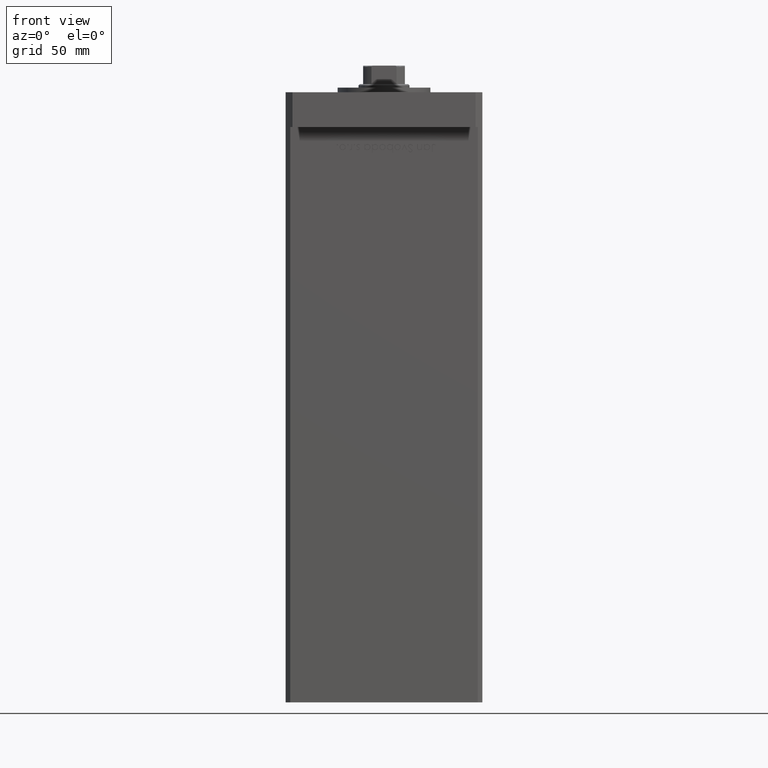
[diagram: clean part render]
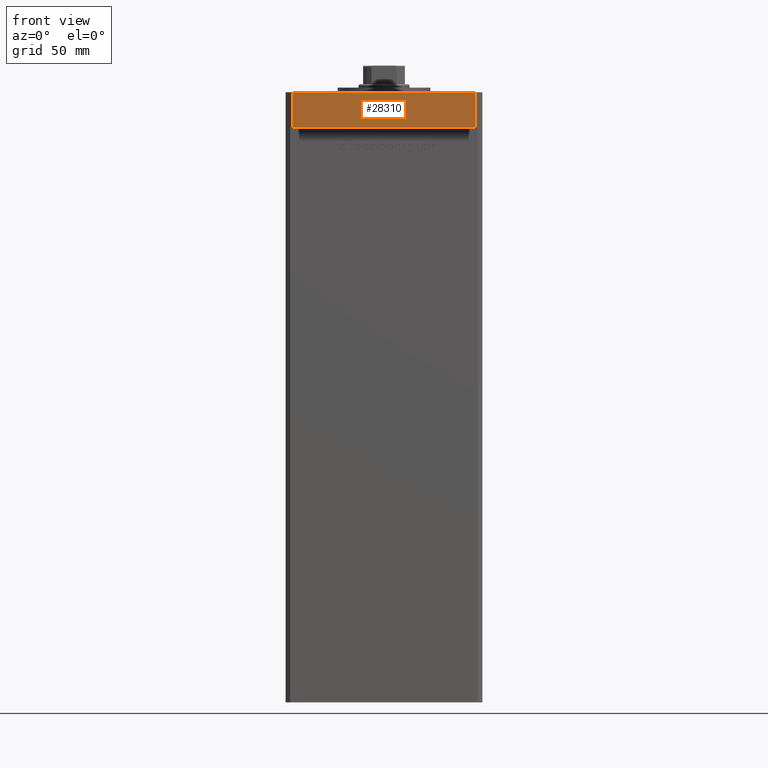
[diagram: same view with one face highlighted and labeled with its STEP entity id]
A machine part, front view. The second image highlights one B-rep face of the part: STEP entity #28310.
In plain terms, the highlighted planar face has unit normal (-0, 1, 0).
Its self-contained STEP definition (entity closure, byte-faithful):
#3465 = CARTESIAN_POINT ( 'NONE',  ( 39.50000000000001421, -64.99999999999988631, 15.00000000000000000 ) ) ;
#4714 = FACE_OUTER_BOUND ( 'NONE', #28051, .T. ) ;
#7923 = ORIENTED_EDGE ( 'NONE', *, *, #11197, .F. ) ;
#8907 = CARTESIAN_POINT ( 'NONE',  ( 39.50000000000001421, -64.99999999999988631, 0.000000000000000000 ) ) ;
#11068 = DIRECTION ( 'NONE',  ( -0.000000000000000000, -0.000000000000000000, -1.000000000000000000 ) ) ;
#11197 = EDGE_CURVE ( 'NONE', #30544, #12877, #15142, .T. ) ;
#11944 = VERTEX_POINT ( 'NONE', #27112 ) ;
#12877 = VERTEX_POINT ( 'NONE', #8907 ) ;
#13137 = CARTESIAN_POINT ( 'NONE',  ( -39.50000000000000000, -65.00000000000000000, 15.00000000000000000 ) ) ;
#15142 = LINE ( 'NONE', #3465, #17712 ) ;
#15383 = CARTESIAN_POINT ( 'NONE',  ( -39.50000000000000000, -65.00000000000000000, 15.00000000000000000 ) ) ;
#17199 = CARTESIAN_POINT ( 'NONE',  ( -39.50000000000000000, -65.00000000000000000, 15.00000000000000000 ) ) ;
#17712 = VECTOR ( 'NONE', #11068, 1000.000000000000000 ) ;
#18428 = ORIENTED_EDGE ( 'NONE', *, *, #20329, .F. ) ;
#19250 = VERTEX_POINT ( 'NONE', #15383 ) ;
#20001 = LINE ( 'NONE', #23808, #20052 ) ;
#20052 = VECTOR ( 'NONE', #39537, 1000.000000000000000 ) ;
#20329 = EDGE_CURVE ( 'NONE', #19250, #30544, #45656, .T. ) ;
#20389 = VECTOR ( 'NONE', #45391, 1000.000000000000000 ) ;
#21270 = PLANE ( 'NONE',  #27713 ) ;
#23808 = CARTESIAN_POINT ( 'NONE',  ( -39.50000000000000000, -65.00000000000000000, 15.00000000000000000 ) ) ;
#27112 = CARTESIAN_POINT ( 'NONE',  ( -39.50000000000000000, -65.00000000000000000, 0.000000000000000000 ) ) ;
#27713 = AXIS2_PLACEMENT_3D ( 'NONE', #17199, #33718, #50244 ) ;
#28051 = EDGE_LOOP ( 'NONE', ( #38991, #7923, #18428, #31288 ) ) ;
#28310 = ADVANCED_FACE ( 'NONE', ( #4714 ), #21270, .F. ) ;
#29681 = DIRECTION ( 'NONE',  ( 1.000000000000000000, 1.405345600791337191E-15, 0.000000000000000000 ) ) ;
#30544 = VERTEX_POINT ( 'NONE', #46676 ) ;
#31288 = ORIENTED_EDGE ( 'NONE', *, *, #36365, .T. ) ;
#33718 = DIRECTION ( 'NONE',  ( -1.405345600791337191E-15, 1.000000000000000000, 0.000000000000000000 ) ) ;
#36365 = EDGE_CURVE ( 'NONE', #19250, #11944, #20001, .T. ) ;
#38991 = ORIENTED_EDGE ( 'NONE', *, *, #51957, .T. ) ;
#39537 = DIRECTION ( 'NONE',  ( -0.000000000000000000, -0.000000000000000000, -1.000000000000000000 ) ) ;
#41597 = LINE ( 'NONE', #42148, #20389 ) ;
#42148 = CARTESIAN_POINT ( 'NONE',  ( -39.50000000000000000, -65.00000000000000000, 0.000000000000000000 ) ) ;
#44644 = VECTOR ( 'NONE', #29681, 1000.000000000000000 ) ;
#45391 = DIRECTION ( 'NONE',  ( 1.000000000000000000, 1.405345600791337191E-15, 0.000000000000000000 ) ) ;
#45656 = LINE ( 'NONE', #13137, #44644 ) ;
#46676 = CARTESIAN_POINT ( 'NONE',  ( 39.50000000000001421, -64.99999999999988631, 15.00000000000000000 ) ) ;
#50244 = DIRECTION ( 'NONE',  ( -1.000000000000000000, -1.405345600791337191E-15, 0.000000000000000000 ) ) ;
#51957 = EDGE_CURVE ( 'NONE', #11944, #12877, #41597, .T. ) ;